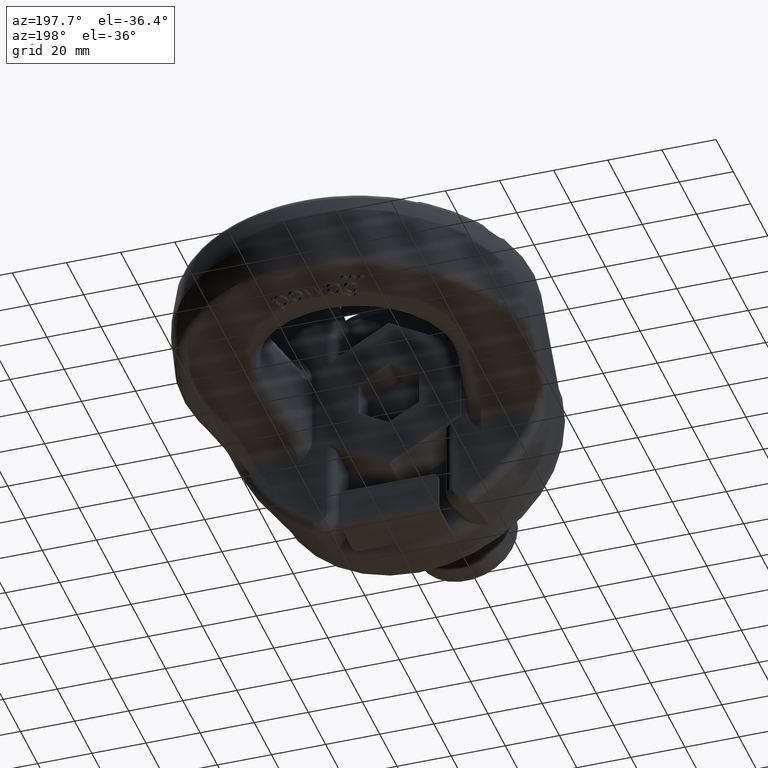
[diagram: clean part render]
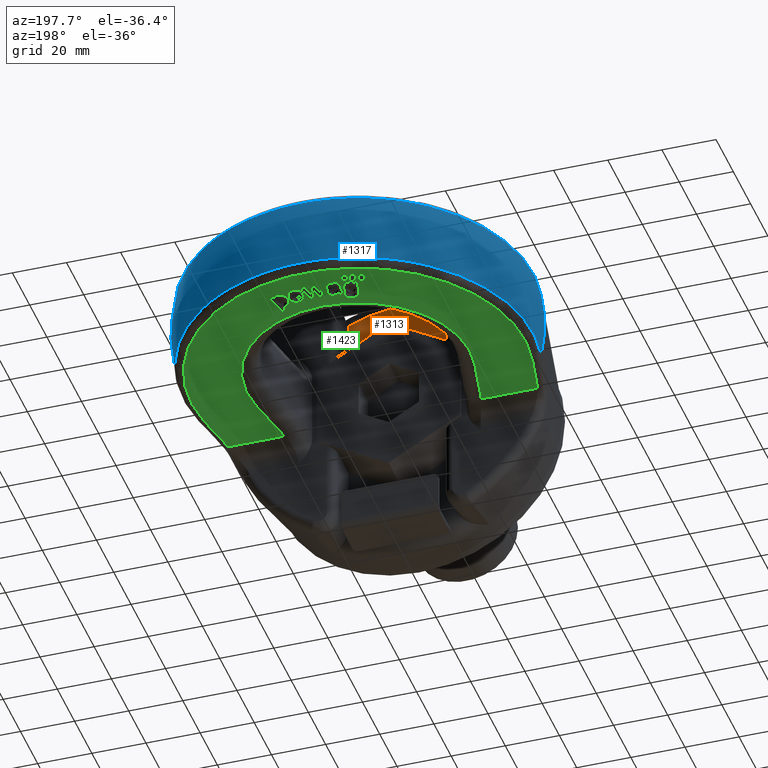
[diagram: same view with three faces highlighted in distinct colors, each labeled with its STEP entity id]
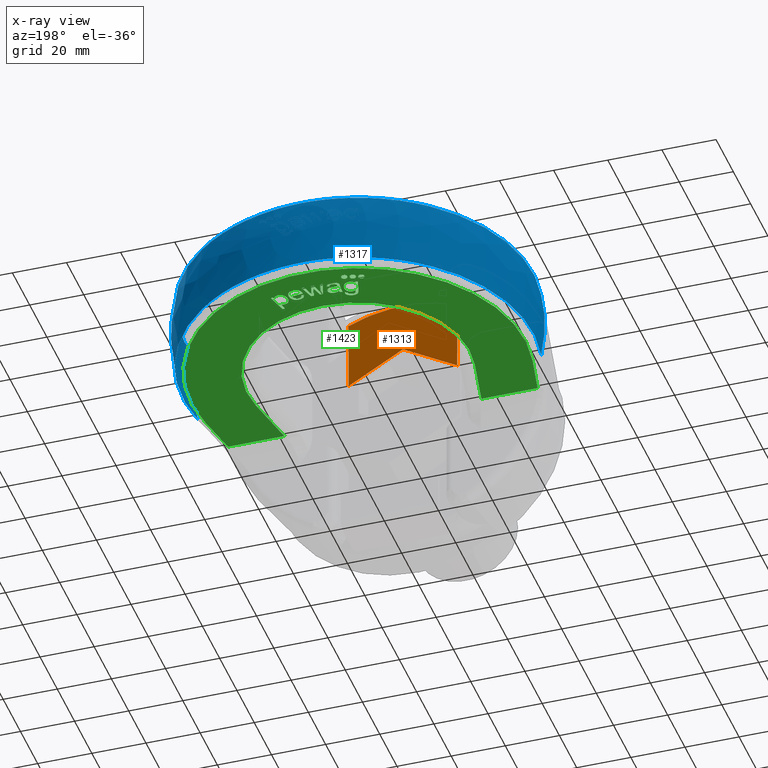
[diagram: x-ray of the same camera — body ghosted, the three highlighted faces saturated]
A machine part, auxiliary view with three faces highlighted in distinct colors.
The next image is the same camera in x-ray (body ghosted, the three faces saturated) — at least one of them is partly hidden behind the body in this view.
Their STEP definitions:

[orange] entity #1313 — the highlighted planar face has unit normal (-0, 1, 0).
#1093=FACE_OUTER_BOUND('',#1825,.T.);
#1313=ADVANCED_FACE('',(#1093),#1552,.T.);
#1552=PLANE('',#5129);
#1673=CIRCLE('',#5128,49.523321448062);
#1825=EDGE_LOOP('',(#2785,#2786,#2787,#2788,#2789,#2790,#2791));
#2135=LINE('',#6648,#2415);
#2136=LINE('',#6662,#2416);
#2137=LINE('',#6664,#2417);
#2138=LINE('',#6666,#2418);
#2415=VECTOR('',#5453,1.);
#2416=VECTOR('',#5458,1.);
#2417=VECTOR('',#5459,1.);
#2418=VECTOR('',#5460,1.);
#2785=ORIENTED_EDGE('',*,*,#4348,.T.);
#2786=ORIENTED_EDGE('',*,*,#4349,.T.);
#2787=ORIENTED_EDGE('',*,*,#4350,.T.);
#2788=ORIENTED_EDGE('',*,*,#4351,.T.);
#2789=ORIENTED_EDGE('',*,*,#4352,.F.);
#2790=ORIENTED_EDGE('',*,*,#4353,.T.);
#2791=ORIENTED_EDGE('',*,*,#4354,.T.);
#3957=VERTEX_POINT('',#6636);
#3960=VERTEX_POINT('',#6647);
#3961=VERTEX_POINT('',#6654);
#3962=VERTEX_POINT('',#6656);
#3963=VERTEX_POINT('',#6661);
#3964=VERTEX_POINT('',#6663);
#3965=VERTEX_POINT('',#6665);
#4348=EDGE_CURVE('',#3957,#3960,#2135,.T.);
#4349=EDGE_CURVE('',#3960,#3961,#4880,.T.);
#4350=EDGE_CURVE('',#3961,#3962,#1673,.T.);
#4351=EDGE_CURVE('',#3962,#3963,#4881,.T.);
#4352=EDGE_CURVE('',#3964,#3963,#2136,.T.);
#4353=EDGE_CURVE('',#3964,#3965,#2137,.T.);
#4354=EDGE_CURVE('',#3965,#3957,#2138,.T.);
#4880=B_SPLINE_CURVE_WITH_KNOTS('',3,(#6650,#6651,#6652,#6653),
 .UNSPECIFIED.,.F.,.F.,(4,4),(0.,1.),.UNSPECIFIED.);
#4881=B_SPLINE_CURVE_WITH_KNOTS('',3,(#6657,#6658,#6659,#6660),
 .UNSPECIFIED.,.F.,.F.,(4,4),(0.,1.),.UNSPECIFIED.);
#5128=AXIS2_PLACEMENT_3D('',#6655,#5456,#5457);
#5129=AXIS2_PLACEMENT_3D('',#6667,#5461,#5462);
#5453=DIRECTION('',(0.,0.,1.));
#5456=DIRECTION('',(-1.73039748227113E-16,1.,0.));
#5457=DIRECTION('',(-1.,-1.40113661624745E-16,0.));
#5458=DIRECTION('',(0.,0.,1.));
#5459=DIRECTION('',(-0.86602540378444,-1.49856817829143E-16,0.499999999999998));
#5460=DIRECTION('',(-0.86602540378444,-1.49856817829143E-16,-0.499999999999998));
#5461=DIRECTION('',(-1.73039748227113E-16,1.,0.));
#5462=DIRECTION('',(-1.,-1.73472347597681E-16,0.));
#6636=CARTESIAN_POINT('',(-20.05,18.5,19.0236913697982));
#6647=CARTESIAN_POINT('',(-20.05,18.5,43.4369797351318));
#6648=CARTESIAN_POINT('',(-20.05,18.5,72.6));
#6650=CARTESIAN_POINT('',(-20.05,18.5,43.4369797351318));
#6651=CARTESIAN_POINT('',(-20.05,18.5,44.0225324551366));
#6652=CARTESIAN_POINT('',(-20.1300914744361,18.5,44.6133565695184));
#6653=CARTESIAN_POINT('',(-20.2864178499622,18.5,45.1776561816217));
#6654=CARTESIAN_POINT('',(-20.2864178499622,18.5,45.1776561816217));
#6655=CARTESIAN_POINT('',(-1.52477105293198E-13,18.5,0.));
#6656=CARTESIAN_POINT('',(20.2864178499622,18.5,45.1776561816216));
#6657=CARTESIAN_POINT('',(20.2864178499622,18.5,45.1776561816216));
#6658=CARTESIAN_POINT('',(20.1300914744361,18.5,44.6133565695183));
#6659=CARTESIAN_POINT('',(20.05,18.5,44.0225324551365));
#6660=CARTESIAN_POINT('',(20.05,18.5,43.4369797351317));
#6661=CARTESIAN_POINT('',(20.05,18.5,43.4369797351317));
#6662=CARTESIAN_POINT('',(20.05,18.5,72.6));
#6663=CARTESIAN_POINT('',(20.05,18.5,19.0236913697982));
#6664=CARTESIAN_POINT('',(-33.2242221573751,18.5,49.7815778732264));
#6665=CARTESIAN_POINT('',(-3.46944695195361E-15,18.5,30.5995642670501));
#6666=CARTESIAN_POINT('',(3.14922215737505,18.5,32.4177685273485));
#6667=CARTESIAN_POINT('',(-20.05,18.5,72.6));

[blue] entity #1317 — the highlighted spherical surface has radius 66 mm.
#1089=SPHERICAL_SURFACE('',#5146,66.);
#1096=FACE_OUTER_BOUND('',#1830,.T.);
#1317=ADVANCED_FACE('',(#1096),#1089,.T.);
#1676=CIRCLE('',#5134,64.7396210534805);
#1680=CIRCLE('',#5138,64.7396210534805);
#1685=CIRCLE('',#5144,64.7047952471735);
#1686=CIRCLE('',#5145,64.7047952471735);
#1830=EDGE_LOOP('',(#2831,#2832,#2833,#2834));
#2831=ORIENTED_EDGE('',*,*,#4372,.F.);
#2832=ORIENTED_EDGE('',*,*,#4393,.T.);
#2833=ORIENTED_EDGE('',*,*,#4382,.F.);
#2834=ORIENTED_EDGE('',*,*,#4394,.T.);
#3982=VERTEX_POINT('',#6762);
#3983=VERTEX_POINT('',#6763);
#3992=VERTEX_POINT('',#6815);
#3993=VERTEX_POINT('',#6817);
#4372=EDGE_CURVE('',#3982,#3983,#1676,.T.);
#4382=EDGE_CURVE('',#3992,#3993,#1680,.T.);
#4393=EDGE_CURVE('',#3982,#3993,#1685,.T.);
#4394=EDGE_CURVE('',#3992,#3983,#1686,.T.);
#5134=AXIS2_PLACEMENT_3D('',#6761,#5481,#5482);
#5138=AXIS2_PLACEMENT_3D('',#6816,#5489,#5490);
#5144=AXIS2_PLACEMENT_3D('',#6872,#5501,#5502);
#5145=AXIS2_PLACEMENT_3D('',#6873,#5503,#5504);
#5146=AXIS2_PLACEMENT_3D('',#6874,#5505,#5506);
#5481=DIRECTION('',(-9.36790447446346E-16,-1.,0.));
#5482=DIRECTION('',(1.,-9.646340852625E-16,0.));
#5489=DIRECTION('',(-9.36790447446346E-16,-1.,0.));
#5490=DIRECTION('',(1.,-9.646340852625E-16,0.));
#5501=DIRECTION('',(0.,-1.54886024640786E-16,-1.));
#5502=DIRECTION('',(0.,1.,-1.60858879409181E-16));
#5503=DIRECTION('',(-2.34291072916505E-15,-1.54886024640786E-16,1.));
#5504=DIRECTION('',(-3.80990360822346E-31,1.,1.60858879409181E-16));
#5505=DIRECTION('',(-8.75558107488978E-16,-1.,0.));
#5506=DIRECTION('',(1.,-8.41078048958452E-16,0.));
#6761=CARTESIAN_POINT('',(-7.38534893235432E-14,57.1632766699694,0.));
#6762=CARTESIAN_POINT('',(-63.4186807031407,57.1632766699695,13.0111287758347));
#6763=CARTESIAN_POINT('',(-63.4186807031405,57.1632766699693,-13.0111287758348));
#6815=CARTESIAN_POINT('',(63.4186807031407,57.1632766699695,-13.0111287758345));
#6816=CARTESIAN_POINT('',(-7.38534893235432E-14,57.1632766699694,0.));
#6817=CARTESIAN_POINT('',(63.4186807031406,57.1632766699693,13.0111287758347));
#6872=CARTESIAN_POINT('',(-1.38050658413677E-30,70.,13.0111287758347));
#6873=CARTESIAN_POINT('',(3.04839132074511E-14,70.,-13.0111287758347));
#6874=CARTESIAN_POINT('',(-1.38050658413677E-30,70.,0.));

[green] entity #1423 — the highlighted planar face has unit normal (-0, -0, 1).
#1423=ADVANCED_FACE('',(#1789,#1790,#1791,#1792,#1793,#1794,#1795,#1796,
#1797),#1605,.F.);
#1605=PLANE('',#5249);
#1709=CIRCLE('',#5244,1.1625);
#1710=CIRCLE('',#5245,1.1625);
#1711=CIRCLE('',#5246,1.1625);
#1712=CIRCLE('',#5247,41.2);
#1713=CIRCLE('',#5248,61.6656306219275);
#1789=FACE_BOUND('',#1946,.T.);
#1790=FACE_BOUND('',#1947,.T.);
#1791=FACE_BOUND('',#1948,.T.);
#1792=FACE_BOUND('',#1949,.T.);
#1793=FACE_BOUND('',#1950,.T.);
#1794=FACE_BOUND('',#1951,.T.);
#1795=FACE_BOUND('',#1952,.T.);
#1796=FACE_BOUND('',#1953,.T.);
#1797=FACE_BOUND('',#1954,.T.);
#1946=EDGE_LOOP('',(#3273,#3274,#3275,#3276,#3277,#3278,#3279));
#1947=EDGE_LOOP('',(#3280,#3281,#3282,#3283,#3284,#3285,#3286,#3287,#3288,
#3289,#3290,#3291,#3292,#3293,#3294));
#1948=EDGE_LOOP('',(#3295,#3296,#3297,#3298,#3299));
#1949=EDGE_LOOP('',(#3300));
#1950=EDGE_LOOP('',(#3301));
#1951=EDGE_LOOP('',(#3302));
#1952=EDGE_LOOP('',(#3303,#3304,#3305,#3306,#3307,#3308,#3309,#3310));
#1953=EDGE_LOOP('',(#3311,#3312,#3313,#3314,#3315,#3316));
#1954=EDGE_LOOP('',(#3317,#3318,#3319,#3320,#3321,#3322,#3323,#3324,#3325));
#2226=LINE('',#8104,#2534);
#2227=LINE('',#8136,#2535);
#2228=LINE('',#8138,#2536);
#2229=LINE('',#8139,#2537);
#2230=LINE('',#8142,#2538);
#2231=LINE('',#8144,#2539);
#2232=LINE('',#8146,#2540);
#2233=LINE('',#8160,#2541);
#2234=LINE('',#8162,#2542);
#2235=LINE('',#8178,#2543);
#2236=LINE('',#8180,#2544);
#2237=LINE('',#8182,#2545);
#2238=LINE('',#8184,#2546);
#2239=LINE('',#8186,#2547);
#2240=LINE('',#8202,#2548);
#2241=LINE('',#8225,#2549);
#2242=LINE('',#8235,#2550);
#2243=LINE('',#8237,#2551);
#2244=LINE('',#8251,#2552);
#2245=LINE('',#8253,#2553);
#2246=LINE('',#8254,#2554);
#2247=LINE('',#8257,#2555);
#2248=LINE('',#8259,#2556);
#2249=LINE('',#8261,#2557);
#2250=LINE('',#8263,#2558);
#2251=LINE('',#8287,#2559);
#2252=LINE('',#8332,#2560);
#2534=VECTOR('',#5806,1.);
#2535=VECTOR('',#5807,1.);
#2536=VECTOR('',#5808,1.);
#2537=VECTOR('',#5809,1.);
#2538=VECTOR('',#5810,1.);
#2539=VECTOR('',#5811,1.);
#2540=VECTOR('',#5812,1.);
#2541=VECTOR('',#5813,1.);
#2542=VECTOR('',#5814,1.);
#2543=VECTOR('',#5815,1.);
#2544=VECTOR('',#5816,1.);
#2545=VECTOR('',#5817,1.);
#2546=VECTOR('',#5818,1.);
#2547=VECTOR('',#5819,1.);
#2548=VECTOR('',#5820,1.);
#2549=VECTOR('',#5821,1.);
#2550=VECTOR('',#5830,1.);
#2551=VECTOR('',#5831,1.);
#2552=VECTOR('',#5834,1.);
#2553=VECTOR('',#5835,1.);
#2554=VECTOR('',#5836,1.);
#2555=VECTOR('',#5837,1.);
#2556=VECTOR('',#5838,1.);
#2557=VECTOR('',#5839,1.);
#2558=VECTOR('',#5840,1.);
#2559=VECTOR('',#5841,1.);
#2560=VECTOR('',#5842,1.);
#3273=ORIENTED_EDGE('',*,*,#4570,.T.);
#3274=ORIENTED_EDGE('',*,*,#4571,.T.);
#3275=ORIENTED_EDGE('',*,*,#4572,.T.);
#3276=ORIENTED_EDGE('',*,*,#4573,.T.);
#3277=ORIENTED_EDGE('',*,*,#4574,.T.);
#3278=ORIENTED_EDGE('',*,*,#4575,.T.);
#3279=ORIENTED_EDGE('',*,*,#4576,.T.);
#3280=ORIENTED_EDGE('',*,*,#4577,.T.);
#3281=ORIENTED_EDGE('',*,*,#4578,.T.);
#3282=ORIENTED_EDGE('',*,*,#4579,.T.);
#3283=ORIENTED_EDGE('',*,*,#4580,.T.);
#3284=ORIENTED_EDGE('',*,*,#4581,.T.);
#3285=ORIENTED_EDGE('',*,*,#4582,.T.);
#3286=ORIENTED_EDGE('',*,*,#4583,.T.);
#3287=ORIENTED_EDGE('',*,*,#4584,.T.);
#3288=ORIENTED_EDGE('',*,*,#4585,.T.);
#3289=ORIENTED_EDGE('',*,*,#4586,.T.);
#3290=ORIENTED_EDGE('',*,*,#4587,.T.);
#3291=ORIENTED_EDGE('',*,*,#4588,.T.);
#3292=ORIENTED_EDGE('',*,*,#4589,.T.);
#3293=ORIENTED_EDGE('',*,*,#4590,.T.);
#3294=ORIENTED_EDGE('',*,*,#4591,.T.);
#3295=ORIENTED_EDGE('',*,*,#4592,.T.);
#3296=ORIENTED_EDGE('',*,*,#4593,.T.);
#3297=ORIENTED_EDGE('',*,*,#4594,.T.);
#3298=ORIENTED_EDGE('',*,*,#4595,.T.);
#3299=ORIENTED_EDGE('',*,*,#4596,.T.);
#3300=ORIENTED_EDGE('',*,*,#4597,.F.);
#3301=ORIENTED_EDGE('',*,*,#4598,.F.);
#3302=ORIENTED_EDGE('',*,*,#4599,.F.);
#3303=ORIENTED_EDGE('',*,*,#4600,.T.);
#3304=ORIENTED_EDGE('',*,*,#4601,.T.);
#3305=ORIENTED_EDGE('',*,*,#4602,.T.);
#3306=ORIENTED_EDGE('',*,*,#4603,.T.);
#3307=ORIENTED_EDGE('',*,*,#4604,.T.);
#3308=ORIENTED_EDGE('',*,*,#4605,.T.);
#3309=ORIENTED_EDGE('',*,*,#4606,.T.);
#3310=ORIENTED_EDGE('',*,*,#4607,.T.);
#3311=ORIENTED_EDGE('',*,*,#4608,.T.);
#3312=ORIENTED_EDGE('',*,*,#4609,.T.);
#3313=ORIENTED_EDGE('',*,*,#4610,.T.);
#3314=ORIENTED_EDGE('',*,*,#4611,.T.);
#3315=ORIENTED_EDGE('',*,*,#4612,.T.);
#3316=ORIENTED_EDGE('',*,*,#4613,.T.);
#3317=ORIENTED_EDGE('',*,*,#4614,.T.);
#3318=ORIENTED_EDGE('',*,*,#4615,.T.);
#3319=ORIENTED_EDGE('',*,*,#4616,.T.);
#3320=ORIENTED_EDGE('',*,*,#4617,.T.);
#3321=ORIENTED_EDGE('',*,*,#4618,.T.);
#3322=ORIENTED_EDGE('',*,*,#4619,.T.);
#3323=ORIENTED_EDGE('',*,*,#4620,.T.);
#3324=ORIENTED_EDGE('',*,*,#4621,.T.);
#3325=ORIENTED_EDGE('',*,*,#4622,.T.);
#4087=VERTEX_POINT('',#8097);
#4088=VERTEX_POINT('',#8098);
#4089=VERTEX_POINT('',#8103);
#4090=VERTEX_POINT('',#8105);
#4091=VERTEX_POINT('',#8118);
#4092=VERTEX_POINT('',#8135);
#4093=VERTEX_POINT('',#8137);
#4094=VERTEX_POINT('',#8140);
#4095=VERTEX_POINT('',#8141);
#4096=VERTEX_POINT('',#8143);
#4097=VERTEX_POINT('',#8145);
#4098=VERTEX_POINT('',#8147);
#4099=VERTEX_POINT('',#8154);
#4100=VERTEX_POINT('',#8159);
#4101=VERTEX_POINT('',#8161);
#4102=VERTEX_POINT('',#8163);
#4103=VERTEX_POINT('',#8170);
#4104=VERTEX_POINT('',#8177);
#4105=VERTEX_POINT('',#8179);
#4106=VERTEX_POINT('',#8181);
#4107=VERTEX_POINT('',#8183);
#4108=VERTEX_POINT('',#8185);
#4109=VERTEX_POINT('',#8195);
#4110=VERTEX_POINT('',#8196);
#4111=VERTEX_POINT('',#8201);
#4112=VERTEX_POINT('',#8203);
#4113=VERTEX_POINT('',#8224);
#4114=VERTEX_POINT('',#8227);
#4115=VERTEX_POINT('',#8229);
#4116=VERTEX_POINT('',#8231);
#4117=VERTEX_POINT('',#8233);
#4118=VERTEX_POINT('',#8234);
#4119=VERTEX_POINT('',#8236);
#4120=VERTEX_POINT('',#8238);
#4121=VERTEX_POINT('',#8243);
#4122=VERTEX_POINT('',#8245);
#4123=VERTEX_POINT('',#8250);
#4124=VERTEX_POINT('',#8252);
#4125=VERTEX_POINT('',#8255);
#4126=VERTEX_POINT('',#8256);
#4127=VERTEX_POINT('',#8258);
#4128=VERTEX_POINT('',#8260);
#4129=VERTEX_POINT('',#8262);
#4130=VERTEX_POINT('',#8264);
#4131=VERTEX_POINT('',#8288);
#4132=VERTEX_POINT('',#8289);
#4133=VERTEX_POINT('',#8294);
#4134=VERTEX_POINT('',#8311);
#4135=VERTEX_POINT('',#8318);
#4136=VERTEX_POINT('',#8331);
#4137=VERTEX_POINT('',#8333);
#4138=VERTEX_POINT('',#8338);
#4139=VERTEX_POINT('',#8351);
#4570=EDGE_CURVE('',#4087,#4088,#4995,.T.);
#4571=EDGE_CURVE('',#4088,#4089,#4996,.T.);
#4572=EDGE_CURVE('',#4089,#4090,#2226,.T.);
#4573=EDGE_CURVE('',#4090,#4091,#4997,.T.);
#4574=EDGE_CURVE('',#4091,#4092,#4998,.T.);
#4575=EDGE_CURVE('',#4092,#4093,#2227,.T.);
#4576=EDGE_CURVE('',#4093,#4087,#2228,.T.);
#4577=EDGE_CURVE('',#4094,#4095,#2229,.T.);
#4578=EDGE_CURVE('',#4095,#4096,#2230,.T.);
#4579=EDGE_CURVE('',#4096,#4097,#2231,.T.);
#4580=EDGE_CURVE('',#4097,#4098,#2232,.T.);
#4581=EDGE_CURVE('',#4098,#4099,#4999,.T.);
#4582=EDGE_CURVE('',#4099,#4100,#5000,.T.);
#4583=EDGE_CURVE('',#4100,#4101,#2233,.T.);
#4584=EDGE_CURVE('',#4101,#4102,#2234,.T.);
#4585=EDGE_CURVE('',#4102,#4103,#5001,.T.);
#4586=EDGE_CURVE('',#4103,#4104,#5002,.T.);
#4587=EDGE_CURVE('',#4104,#4105,#2235,.T.);
#4588=EDGE_CURVE('',#4105,#4106,#2236,.T.);
#4589=EDGE_CURVE('',#4106,#4107,#2237,.T.);
#4590=EDGE_CURVE('',#4107,#4108,#2238,.T.);
#4591=EDGE_CURVE('',#4108,#4094,#2239,.T.);
#4592=EDGE_CURVE('',#4109,#4110,#5003,.T.);
#4593=EDGE_CURVE('',#4110,#4111,#5004,.T.);
#4594=EDGE_CURVE('',#4111,#4112,#2240,.T.);
#4595=EDGE_CURVE('',#4112,#4113,#5005,.T.);
#4596=EDGE_CURVE('',#4113,#4109,#2241,.T.);
#4597=EDGE_CURVE('',#4114,#4114,#1709,.T.);
#4598=EDGE_CURVE('',#4115,#4115,#1710,.T.);
#4599=EDGE_CURVE('',#4116,#4116,#1711,.T.);
#4600=EDGE_CURVE('',#4117,#4118,#1712,.T.);
#4601=EDGE_CURVE('',#4118,#4119,#2242,.T.);
#4602=EDGE_CURVE('',#4119,#4120,#2243,.T.);
#4603=EDGE_CURVE('',#4120,#4121,#5006,.T.);
#4604=EDGE_CURVE('',#4121,#4122,#1713,.T.);
#4605=EDGE_CURVE('',#4122,#4123,#5007,.T.);
#4606=EDGE_CURVE('',#4123,#4124,#2244,.T.);
#4607=EDGE_CURVE('',#4124,#4117,#2245,.T.);
#4608=EDGE_CURVE('',#4125,#4126,#2246,.T.);
#4609=EDGE_CURVE('',#4126,#4127,#2247,.T.);
#4610=EDGE_CURVE('',#4127,#4128,#2248,.T.);
#4611=EDGE_CURVE('',#4128,#4129,#2249,.T.);
#4612=EDGE_CURVE('',#4129,#4130,#2250,.T.);
#4613=EDGE_CURVE('',#4130,#4125,#5008,.T.);
#4614=EDGE_CURVE('',#4131,#4132,#2251,.T.);
#4615=EDGE_CURVE('',#4132,#4133,#5009,.T.);
#4616=EDGE_CURVE('',#4133,#4134,#5010,.T.);
#4617=EDGE_CURVE('',#4134,#4135,#5011,.T.);
#4618=EDGE_CURVE('',#4135,#4136,#5012,.T.);
#4619=EDGE_CURVE('',#4136,#4137,#2252,.T.);
#4620=EDGE_CURVE('',#4137,#4138,#5013,.T.);
#4621=EDGE_CURVE('',#4138,#4139,#5014,.T.);
#4622=EDGE_CURVE('',#4139,#4131,#5015,.T.);
#4995=B_SPLINE_CURVE_WITH_KNOTS('',3,(#8085,#8086,#8087,#8088,#8089,#8090,
#8091,#8092,#8093,#8094,#8095,#8096),.UNSPECIFIED.,.F.,.F.,(4,2,2,2,2,4),
(0.,0.305645754892094,0.470829306249217,0.636012857606337,0.802206343843957,
1.),.UNSPECIFIED.);
#4996=B_SPLINE_CURVE_WITH_KNOTS('',3,(#8099,#8100,#8101,#8102),
 .UNSPECIFIED.,.F.,.F.,(4,4),(0.,1.),.UNSPECIFIED.);
#4997=B_SPLINE_CURVE_WITH_KNOTS('',3,(#8106,#8107,#8108,#8109,#8110,#8111,
#8112,#8113,#8114,#8115,#8116,#8117),.UNSPECIFIED.,.F.,.F.,(4,2,2,2,2,4),
(0.,0.163304651309286,0.382303784248528,0.619375661168191,0.856447538087856,
1.),.UNSPECIFIED.);
#4998=B_SPLINE_CURVE_WITH_KNOTS('',3,(#8119,#8120,#8121,#8122,#8123,#8124,
#8125,#8126,#8127,#8128,#8129,#8130,#8131,#8132,#8133,#8134),
 .UNSPECIFIED.,.F.,.F.,(4,2,2,2,2,2,2,4),(0.,0.139503666745456,0.312880428291726,
0.486257189837992,0.605370995480462,0.723854105689079,0.842337215897696,
1.),.UNSPECIFIED.);
#4999=B_SPLINE_CURVE_WITH_KNOTS('',3,(#8148,#8149,#8150,#8151,#8152,#8153),
 .UNSPECIFIED.,.F.,.F.,(4,2,4),(0.,0.728909607654962,1.),.UNSPECIFIED.);
#5000=B_SPLINE_CURVE_WITH_KNOTS('',3,(#8155,#8156,#8157,#8158),
 .UNSPECIFIED.,.F.,.F.,(4,4),(0.,1.),.UNSPECIFIED.);
#5001=B_SPLINE_CURVE_WITH_KNOTS('',3,(#8164,#8165,#8166,#8167,#8168,#8169),
 .UNSPECIFIED.,.F.,.F.,(4,2,4),(0.,0.752082276025124,1.),.UNSPECIFIED.);
#5002=B_SPLINE_CURVE_WITH_KNOTS('',3,(#8171,#8172,#8173,#8174,#8175,#8176),
 .UNSPECIFIED.,.F.,.F.,(4,2,4),(0.,0.250451922487271,1.),.UNSPECIFIED.);
#5003=B_SPLINE_CURVE_WITH_KNOTS('',3,(#8187,#8188,#8189,#8190,#8191,#8192,
#8193,#8194),.UNSPECIFIED.,.F.,.F.,(4,2,2,4),(0.,0.363477968613218,0.728087675912443,
1.),.UNSPECIFIED.);
#5004=B_SPLINE_CURVE_WITH_KNOTS('',3,(#8197,#8198,#8199,#8200),
 .UNSPECIFIED.,.F.,.F.,(4,4),(0.,1.),.UNSPECIFIED.);
#5005=B_SPLINE_CURVE_WITH_KNOTS('',3,(#8204,#8205,#8206,#8207,#8208,#8209,
#8210,#8211,#8212,#8213,#8214,#8215,#8216,#8217,#8218,#8219,#8220,#8221,
#8222,#8223),.UNSPECIFIED.,.F.,.F.,(4,2,2,2,2,2,2,2,2,4),(0.,0.10292120312204,
0.206156274885326,0.336063021724232,0.465707475917734,0.599570296299743,
0.733433116681749,0.86284525505617,0.99225739343059,1.),.UNSPECIFIED.);
#5006=B_SPLINE_CURVE_WITH_KNOTS('',3,(#8239,#8240,#8241,#8242),
 .UNSPECIFIED.,.F.,.F.,(4,4),(0.,1.),.UNSPECIFIED.);
#5007=B_SPLINE_CURVE_WITH_KNOTS('',3,(#8246,#8247,#8248,#8249),
 .UNSPECIFIED.,.F.,.F.,(4,4),(0.,1.),.UNSPECIFIED.);
#5008=B_SPLINE_CURVE_WITH_KNOTS('',3,(#8265,#8266,#8267,#8268,#8269,#8270,
#8271,#8272,#8273,#8274,#8275,#8276,#8277,#8278,#8279,#8280,#8281,#8282,
#8283,#8284,#8285,#8286),.UNSPECIFIED.,.F.,.F.,(4,2,2,2,2,2,2,2,2,2,4),
(0.,0.0830854503763856,0.165678296755071,0.273272220956495,0.380460889370519,
0.487248686046681,0.601946689884038,0.717055250849194,0.831909514623423,
0.915821305508704,1.),.UNSPECIFIED.);
#5009=B_SPLINE_CURVE_WITH_KNOTS('',3,(#8290,#8291,#8292,#8293),
 .UNSPECIFIED.,.F.,.F.,(4,4),(0.,1.),.UNSPECIFIED.);
#5010=B_SPLINE_CURVE_WITH_KNOTS('',3,(#8295,#8296,#8297,#8298,#8299,#8300,
#8301,#8302,#8303,#8304,#8305,#8306,#8307,#8308,#8309,#8310),
 .UNSPECIFIED.,.F.,.F.,(4,2,2,2,2,2,2,4),(0.,0.121639465164558,0.24393090499118,
0.445161792748214,0.646392680505253,0.763565096161256,0.881519242448365,
1.),.UNSPECIFIED.);
#5011=B_SPLINE_CURVE_WITH_KNOTS('',3,(#8312,#8313,#8314,#8315,#8316,#8317),
 .UNSPECIFIED.,.F.,.F.,(4,2,4),(0.,0.329344693449401,1.),.UNSPECIFIED.);
#5012=B_SPLINE_CURVE_WITH_KNOTS('',3,(#8319,#8320,#8321,#8322,#8323,#8324,
#8325,#8326,#8327,#8328,#8329,#8330),.UNSPECIFIED.,.F.,.F.,(4,2,2,2,2,4),
(0.,0.0173977322142946,0.217983350684949,0.490675035316422,0.745337517658209,
1.),.UNSPECIFIED.);
#5013=B_SPLINE_CURVE_WITH_KNOTS('',3,(#8334,#8335,#8336,#8337),
 .UNSPECIFIED.,.F.,.F.,(4,4),(0.,1.),.UNSPECIFIED.);
#5014=B_SPLINE_CURVE_WITH_KNOTS('',3,(#8339,#8340,#8341,#8342,#8343,#8344,
#8345,#8346,#8347,#8348,#8349,#8350),.UNSPECIFIED.,.F.,.F.,(4,2,2,2,2,4),
(0.,0.201730292707486,0.402155128097308,0.601755169925855,0.800199545078038,
1.),.UNSPECIFIED.);
#5015=B_SPLINE_CURVE_WITH_KNOTS('',3,(#8352,#8353,#8354,#8355,#8356,#8357,
#8358,#8359,#8360,#8361),.UNSPECIFIED.,.F.,.F.,(4,2,2,2,4),(0.,0.16140360480511,
0.323059797411172,0.661780038481063,1.),.UNSPECIFIED.);
#5244=AXIS2_PLACEMENT_3D('',#8226,#5822,#5823);
#5245=AXIS2_PLACEMENT_3D('',#8228,#5824,#5825);
#5246=AXIS2_PLACEMENT_3D('',#8230,#5826,#5827);
#5247=AXIS2_PLACEMENT_3D('',#8232,#5828,#5829);
#5248=AXIS2_PLACEMENT_3D('',#8244,#5832,#5833);
#5249=AXIS2_PLACEMENT_3D('',#8362,#5843,#5844);
#5806=DIRECTION('',(-0.91908114156968,-0.39406833824982,-2.21436074590518E-15));
#5807=DIRECTION('',(-0.257903959022476,0.96617055840081,-4.54599635772231E-16));
#5808=DIRECTION('',(-0.96617055840081,-0.257903959022476,-2.30359708643276E-15));
#5809=DIRECTION('',(0.258682551291159,-0.965962389359698,4.56456050427406E-16));
#5810=DIRECTION('',(0.999999995013309,9.98668225749809E-5,2.34292618545682E-15));
#5811=DIRECTION('',(0.297312437412129,0.954780244119064,8.44458615944251E-16));
#5812=DIRECTION('',(-0.999999995013309,-9.98668226028311E-5,-2.34292618545682E-15));
#5813=DIRECTION('',(-0.266694412603285,0.96378114231717,-4.75564970939345E-16));
#5814=DIRECTION('',(-0.999999995013309,-9.98668226114398E-5,-2.34292618545682E-15));
#5815=DIRECTION('',(-0.999999995013309,-9.98668226022964E-5,-2.34292618545682E-15));
#5816=DIRECTION('',(0.303115801877046,-0.952953729544323,5.62574049561468E-16));
#5817=DIRECTION('',(0.999999995013309,9.98668225943257E-5,2.34292618545682E-15));
#5818=DIRECTION('',(0.260546764680396,0.965461228333162,7.59974262020274E-16));
#5819=DIRECTION('',(0.226095127342087,0.974105227063363,6.80595985863367E-16));
#5820=DIRECTION('',(-0.999818561746989,0.0190484536428019,-2.3395352962751E-15));
#5821=DIRECTION('',(0.990308685769362,-0.138883789153951,2.29869368708527E-15));
#5822=DIRECTION('',(2.34291072916505E-15,1.54886024640786E-16,-1.));
#5823=DIRECTION('',(0.,1.00000000000001,0.));
#5824=DIRECTION('',(2.34291072916505E-15,1.54886024640786E-16,-1.));
#5825=DIRECTION('',(0.,0.999999999999996,0.));
#5826=DIRECTION('',(2.34291072916505E-15,1.54886024640786E-16,-1.));
#5827=DIRECTION('',(0.,0.999999999999996,0.));
#5828=DIRECTION('',(-2.34291072916505E-15,-1.54886024640786E-16,1.));
#5829=DIRECTION('',(-2.99173583594134E-31,1.,1.68419754949205E-16));
#5830=DIRECTION('',(0.194495808030769,-0.980903349295158,3.03758095083753E-16));
#5831=DIRECTION('',(-1.,0.,-2.34291072916505E-15));
#5832=DIRECTION('',(2.34291072916505E-15,1.54886024640786E-16,-1.));
#5833=DIRECTION('',(-3.99767310242843E-31,1.,1.68786741510429E-16));
#5834=DIRECTION('',(-1.,0.,-2.34291072916505E-15));
#5835=DIRECTION('',(0.194495808030769,0.980903349295158,6.07614535742073E-16));
#5836=DIRECTION('',(-0.257710977111592,-0.966222051226419,-7.53448105733082E-16));
#5837=DIRECTION('',(0.966222051226425,-0.25771097711157,2.22385618182315E-15));
#5838=DIRECTION('',(0.257710977111592,0.966222051226419,7.53448105733084E-16));
#5839=DIRECTION('',(-0.966222051226417,0.257710977111598,-2.22385618182313E-15));
#5840=DIRECTION('',(-0.257710977111588,-0.96622205122642,-7.53448105733075E-16));
#5841=DIRECTION('',(0.990280926250583,0.139081584346341,2.34168160070014E-15));
#5842=DIRECTION('',(0.963006440108684,0.269478378184967,2.29797655550939E-15));
#5843=DIRECTION('',(-2.34291072916505E-15,-1.54886024640786E-16,1.));
#5844=DIRECTION('',(0.,1.,1.54390389361936E-16));
#8085=CARTESIAN_POINT('',(-16.0542073672483,121.120330488891,-15.5));
#8086=CARTESIAN_POINT('',(-15.6369690359979,119.557254865631,-15.5));
#8087=CARTESIAN_POINT('',(-15.2197307047474,117.99417924237,-15.5));
#8088=CARTESIAN_POINT('',(-14.5769995988873,115.586353190361,-15.5));
#8089=CARTESIAN_POINT('',(-14.3297593547867,115.012118877035,-15.5));
#8090=CARTESIAN_POINT('',(-13.7907612846348,114.400851413522,-15.5));
#8091=CARTESIAN_POINT('',(-13.4393410675047,114.195062121975,-15.5));
#8092=CARTESIAN_POINT('',(-12.572060351269,113.990210229399,-15.5));
#8093=CARTESIAN_POINT('',(-12.07736744436,114.012781324269,-15.5));
#8094=CARTESIAN_POINT('',(-10.8650487935444,114.336390625881,-15.5));
#8095=CARTESIAN_POINT('',(-10.3718143844394,114.624005506256,-15.5));
#8096=CARTESIAN_POINT('',(-10.0441296562226,115.023383267096,-15.5));
#8097=CARTESIAN_POINT('',(-16.0542073672483,121.120330488891,-15.5));
#8098=CARTESIAN_POINT('',(-10.0441296562226,115.023383267096,-15.5));
#8099=CARTESIAN_POINT('',(-10.0441296562226,115.023383267096,-15.5));
#8100=CARTESIAN_POINT('',(-9.7164449280058,115.422761027935,-15.5));
#8101=CARTESIAN_POINT('',(-9.6386310124269,115.91344549896,-15.5));
#8102=CARTESIAN_POINT('',(-9.80822752264652,116.494041418507,-15.5));
#8103=CARTESIAN_POINT('',(-9.80822752264652,116.494041418507,-15.5));
#8104=CARTESIAN_POINT('',(-102.338366304172,76.8205062120443,-15.5000000000003));
#8105=CARTESIAN_POINT('',(-10.6831598610139,116.118902470413,-15.5));
#8106=CARTESIAN_POINT('',(-10.6831598610139,116.118902470413,-15.5));
#8107=CARTESIAN_POINT('',(-10.646561809009,115.833180424128,-15.5));
#8108=CARTESIAN_POINT('',(-10.69812258232,115.603954671453,-15.5));
#8109=CARTESIAN_POINT('',(-11.0252126612647,115.199586973892,-15.5));
#8110=CARTESIAN_POINT('',(-11.3194728536376,115.029742452747,-15.5));
#8111=CARTESIAN_POINT('',(-12.1556218909366,114.806545683629,-15.5));
#8112=CARTESIAN_POINT('',(-12.5114102119556,114.801862628784,-15.5));
#8113=CARTESIAN_POINT('',(-13.0740992520867,115.016921784688,-15.5));
#8114=CARTESIAN_POINT('',(-13.2978377967444,115.213701196687,-15.5));
#8115=CARTESIAN_POINT('',(-13.5606172416309,115.67068759053,-15.5));
#8116=CARTESIAN_POINT('',(-13.688555807056,116.059491867241,-15.5));
#8117=CARTESIAN_POINT('',(-13.8447013009556,116.660094507307,-15.5));
#8118=CARTESIAN_POINT('',(-13.8447013009556,116.660094507307,-15.5));
#8119=CARTESIAN_POINT('',(-13.8447013009556,116.660094507307,-15.5));
#8120=CARTESIAN_POINT('',(-13.3085898482785,116.29429927171,-15.5));
#8121=CARTESIAN_POINT('',(-12.7369912480429,116.194479649261,-15.5));
#8122=CARTESIAN_POINT('',(-11.3687473688265,116.559710726,-15.5));
#8123=CARTESIAN_POINT('',(-10.8517146394264,116.98500766639,-15.5));
#8124=CARTESIAN_POINT('',(-10.3087754724116,118.283173643784,-15.5));
#8125=CARTESIAN_POINT('',(-10.2725408196601,118.984377676153,-15.5));
#8126=CARTESIAN_POINT('',(-10.6115469638012,120.254376620052,-15.5));
#8127=CARTESIAN_POINT('',(-10.8343702158061,120.705851211944,-15.5));
#8128=CARTESIAN_POINT('',(-11.4489409017774,121.479139691006,-15.5));
#8129=CARTESIAN_POINT('',(-11.8153830615383,121.744967946412,-15.5));
#8130=CARTESIAN_POINT('',(-12.6672431017269,122.026479087376,-15.5));
#8131=CARTESIAN_POINT('',(-13.1243526026345,122.033738382834,-15.5));
#8132=CARTESIAN_POINT('',(-14.2645558353149,121.729379152218,-15.5));
#8133=CARTESIAN_POINT('',(-14.7315204075517,121.327707230194,-15.5));
#8134=CARTESIAN_POINT('',(-15.0158994673229,120.695698491261,-15.5));
#8135=CARTESIAN_POINT('',(-15.0158994673229,120.695698491261,-15.5));
#8136=CARTESIAN_POINT('',(-29.1023387290155,173.466904249148,-15.5000000000001));
#8137=CARTESIAN_POINT('',(-15.1907714149793,121.350811068657,-15.5));
#8138=CARTESIAN_POINT('',(-118.088432685964,93.8839068195092,-15.5000000000003));
#8139=CARTESIAN_POINT('',(-14.7480282381194,177.399813836839,-15.5));
#8140=CARTESIAN_POINT('',(0.0250431257661594,122.23478147724,-15.5));
#8141=CARTESIAN_POINT('',(1.181392882845,117.916784887566,-15.5));
#8142=CARTESIAN_POINT('',(-131.997194090284,117.903484765184,-15.5000000000003));
#8143=CARTESIAN_POINT('',(2.19206509749661,117.91688582019,-15.5));
#8144=CARTESIAN_POINT('',(-1.69790166186742,105.424763242175,-15.5));
#8145=CARTESIAN_POINT('',(3.9405119767258,123.531795686424,-15.5));
#8146=CARTESIAN_POINT('',(-131.99775481605,123.518219963582,-15.5000000000003));
#8147=CARTESIAN_POINT('',(2.93992631112259,123.531695761113,-15.5));
#8148=CARTESIAN_POINT('',(2.93992631112259,123.531695761113,-15.5));
#8149=CARTESIAN_POINT('',(2.63676531109745,122.451146165596,-15.5));
#8150=CARTESIAN_POINT('',(2.33360431107232,121.370596570079,-15.5));
#8151=CARTESIAN_POINT('',(1.91769402968577,119.888177372734,-15.5));
#8152=CARTESIAN_POINT('',(1.80458486689794,119.48640882683,-15.5));
#8153=CARTESIAN_POINT('',(1.69165564482332,119.084589752964,-15.5));
#8154=CARTESIAN_POINT('',(1.69165564482332,119.084589752964,-15.5));
#8155=CARTESIAN_POINT('',(1.69165564482332,119.084589752964,-15.5));
#8156=CARTESIAN_POINT('',(1.67752853626393,119.14406646983,-15.5));
#8157=CARTESIAN_POINT('',(1.57864174629404,119.530664424337,-15.5));
#8158=CARTESIAN_POINT('',(1.39701278271971,120.242401213712,-15.5));
#8159=CARTESIAN_POINT('',(1.39701278271971,120.242401213712,-15.5));
#8160=CARTESIAN_POINT('',(-14.7115766838678,178.455674621581,-15.5));
#8161=CARTESIAN_POINT('',(0.486877582546959,123.531450782929,-15.5));
#8162=CARTESIAN_POINT('',(-131.99775481605,123.518219963581,-15.5000000000003));
#8163=CARTESIAN_POINT('',(-0.507656153627205,123.531351462005,-15.5));
#8164=CARTESIAN_POINT('',(-0.507656153627205,123.531351462005,-15.5));
#8165=CARTESIAN_POINT('',(-0.792660837374821,122.445516735017,-15.5));
#8166=CARTESIAN_POINT('',(-1.07766552112244,121.35968200803,-15.5));
#8167=CARTESIAN_POINT('',(-1.45661964998971,119.915910812243,-15.5));
#8168=CARTESIAN_POINT('',(-1.55357078949004,119.558768947898,-15.5));
#8169=CARTESIAN_POINT('',(-1.64902108180004,119.201229781326,-15.5));
#8170=CARTESIAN_POINT('',(-1.64902108180004,119.201229781326,-15.5));
#8171=CARTESIAN_POINT('',(-1.64902108180004,119.201229781326,-15.5));
#8172=CARTESIAN_POINT('',(-1.75799191286412,119.562713741523,-15.5));
#8173=CARTESIAN_POINT('',(-1.8669627439282,119.92419770172,-15.5));
#8174=CARTESIAN_POINT('',(-2.30205954806481,121.367524455244,-15.5));
#8175=CARTESIAN_POINT('',(-2.62841316017995,122.449298612778,-15.5));
#8176=CARTESIAN_POINT('',(-2.95465295277378,123.531107088208,-15.5));
#8177=CARTESIAN_POINT('',(-2.95465295277378,123.531107088208,-15.5));
#8178=CARTESIAN_POINT('',(-131.99775481605,123.518219963582,-15.5000000000003));
#8179=CARTESIAN_POINT('',(-3.89673663389617,123.531013005304,-15.5));
#8180=CARTESIAN_POINT('',(-22.157047365107,180.938878600526,-15.5));
#8181=CARTESIAN_POINT('',(-2.11085672655916,117.916456101057,-15.5));
#8182=CARTESIAN_POINT('',(-131.997194090284,117.903484765181,-15.5000000000003));
#8183=CARTESIAN_POINT('',(-1.10421913152689,117.916556630756,-15.5));
#8184=CARTESIAN_POINT('',(-2.9257006474552,111.167020577558,-15.5));
#8185=CARTESIAN_POINT('',(-0.196765519040746,121.279144074284,-15.5));
#8186=CARTESIAN_POINT('',(-1.48988361470897,115.707891340939,-15.5));
#8187=CARTESIAN_POINT('',(8.65403497279531,119.760513562251,-15.5));
#8188=CARTESIAN_POINT('',(8.5324409584001,119.154942297598,-15.5));
#8189=CARTESIAN_POINT('',(8.29110444954012,118.712310532189,-15.5));
#8190=CARTESIAN_POINT('',(7.56782217371324,118.152055139492,-15.5));
#8191=CARTESIAN_POINT('',(7.15053589250395,118.045438595844,-15.5));
#8192=CARTESIAN_POINT('',(6.32745900471542,118.160869308089,-15.5));
#8193=CARTESIAN_POINT('',(6.04046126240589,118.293211002308,-15.5));
#8194=CARTESIAN_POINT('',(5.8160736791533,118.508864355205,-15.5));
#8195=CARTESIAN_POINT('',(8.65403497279531,119.760513562251,-15.5));
#8196=CARTESIAN_POINT('',(5.8160736791533,118.508864355205,-15.5));
#8197=CARTESIAN_POINT('',(5.8160736791533,118.508864355205,-15.5));
#8198=CARTESIAN_POINT('',(5.59395920692725,118.726200926677,-15.5));
#8199=CARTESIAN_POINT('',(5.43665770647944,119.042556278473,-15.5));
#8200=CARTESIAN_POINT('',(5.34671764042659,119.461577019374,-15.5));
#8201=CARTESIAN_POINT('',(5.34671764042659,119.461577019374,-15.5));
#8202=CARTESIAN_POINT('',(-132.455588824395,122.086974213421,-15.5000000000003));
#8203=CARTESIAN_POINT('',(4.33903251298227,119.480775346122,-15.5));
#8204=CARTESIAN_POINT('',(4.33903251298227,119.480775346122,-15.5));
#8205=CARTESIAN_POINT('',(4.41700354730931,118.889258627521,-15.5));
#8206=CARTESIAN_POINT('',(4.64472455779796,118.406870944611,-15.5));
#8207=CARTESIAN_POINT('',(5.40081766713356,117.659215360094,-15.5));
#8208=CARTESIAN_POINT('',(5.91903121114446,117.427355921523,-15.5));
#8209=CARTESIAN_POINT('',(7.40336647237474,117.219188399197,-15.5));
#8210=CARTESIAN_POINT('',(8.09360121945793,117.376642660156,-15.5));
#8211=CARTESIAN_POINT('',(9.20436981888771,118.244857647279,-15.5));
#8212=CARTESIAN_POINT('',(9.54524637760112,118.910801178424,-15.5));
#8213=CARTESIAN_POINT('',(9.80325081758287,120.750497801316,-15.5));
#8214=CARTESIAN_POINT('',(9.65940649526807,121.51141328818,-15.5));
#8215=CARTESIAN_POINT('',(8.82533930786711,122.681440635978,-15.5));
#8216=CARTESIAN_POINT('',(8.22440045756328,123.029982893652,-15.5));
#8217=CARTESIAN_POINT('',(6.68812345098712,123.245434878401,-15.5));
#8218=CARTESIAN_POINT('',(6.03329767057846,123.079010747661,-15.5));
#8219=CARTESIAN_POINT('',(4.93229172059253,122.200383784635,-15.5));
#8220=CARTESIAN_POINT('',(4.5928833125883,121.523257125913,-15.5));
#8221=CARTESIAN_POINT('',(4.45630892386797,120.549415583805,-15.5));
#8222=CARTESIAN_POINT('',(4.44646656492739,120.464709633322,-15.5));
#8223=CARTESIAN_POINT('',(4.43476704316091,120.352236048324,-15.5));
#8224=CARTESIAN_POINT('',(4.43476704316091,120.352236048324,-15.5));
#8225=CARTESIAN_POINT('',(-132.895887380269,139.611889050863,-15.5000000000003));
#8226=CARTESIAN_POINT('',(-12.3945647897034,125.328697469522,-15.5));
#8227=CARTESIAN_POINT('',(-12.3945647897034,126.491197469522,-15.5));
#8228=CARTESIAN_POINT('',(-15.3253067690561,124.589604985146,-15.5));
#8229=CARTESIAN_POINT('',(-15.3253067690561,125.752104985147,-15.5));
#8230=CARTESIAN_POINT('',(-18.2125,123.695389408682,-15.5));
#8231=CARTESIAN_POINT('',(-18.2125,124.857889408682,-15.5));
#8232=CARTESIAN_POINT('',(3.63151163020583E-14,70.,-15.5));
#8233=CARTESIAN_POINT('',(40.4132179909606,61.9867727091324,-15.4999999999999));
#8234=CARTESIAN_POINT('',(-40.4132179909605,61.9867727091324,-15.5000000000001));
#8235=CARTESIAN_POINT('',(-36.1615198976549,40.5441259902092,-15.5000000000001));
#8236=CARTESIAN_POINT('',(-36.4006234139046,41.75,-15.5000000000001));
#8237=CARTESIAN_POINT('',(-132.,41.75,-15.5000000000003));
#8238=CARTESIAN_POINT('',(-57.1943342992188,41.75,-15.5000000000001));
#8239=CARTESIAN_POINT('',(-57.1943342992188,41.75,-15.5000000000001));
#8240=CARTESIAN_POINT('',(-58.2774532256605,47.088483312234,-15.5000000000002));
#8241=CARTESIAN_POINT('',(-59.3592493660845,52.4272351242382,-15.5000000000002));
#8242=CARTESIAN_POINT('',(-60.439924488296,57.7662136748647,-15.5000000000002));
#8243=CARTESIAN_POINT('',(-60.439924488296,57.7662136748647,-15.5000000000002));
#8244=CARTESIAN_POINT('',(3.63151163020583E-14,70.,-15.5));
#8245=CARTESIAN_POINT('',(60.4399244882961,57.7662136748649,-15.4999999999999));
#8246=CARTESIAN_POINT('',(60.4399244882961,57.7662136748649,-15.4999999999999));
#8247=CARTESIAN_POINT('',(59.3592493660846,52.4272351242383,-15.4999999999999));
#8248=CARTESIAN_POINT('',(58.2774532256607,47.0884833122341,-15.4999999999999));
#8249=CARTESIAN_POINT('',(57.194334299219,41.75,-15.4999999999999));
#8250=CARTESIAN_POINT('',(57.194334299219,41.75,-15.4999999999999));
#8251=CARTESIAN_POINT('',(-132.,41.75,-15.5000000000003));
#8252=CARTESIAN_POINT('',(36.4006234139047,41.75,-15.4999999999999));
#8253=CARTESIAN_POINT('',(40.4132179909606,61.9867727091324,-15.4999999999999));
#8254=CARTESIAN_POINT('',(11.4801964229162,107.730927617126,-15.5));
#8255=CARTESIAN_POINT('',(13.8208674016461,116.50668074826,-15.5));
#8256=CARTESIAN_POINT('',(13.1167936282863,113.86693442028,-15.5));
#8257=CARTESIAN_POINT('',(-130.363402794631,152.136006803151,-15.5000000000003));
#8258=CARTESIAN_POINT('',(14.0523948596425,113.617390635584,-15.5));
#8259=CARTESIAN_POINT('',(12.4157976542723,107.48138383243,-15.5));
#8260=CARTESIAN_POINT('',(16.0537424432782,121.120936620124,-15.5));
#8261=CARTESIAN_POINT('',(-128.362055210994,159.639552787695,-15.5000000000003));
#8262=CARTESIAN_POINT('',(15.2019554888978,121.348125440774,-15.5));
#8263=CARTESIAN_POINT('',(11.564010699892,107.708572653081,-15.5));
#8264=CARTESIAN_POINT('',(15.0139299819338,120.643171414144,-15.5));
#8265=CARTESIAN_POINT('',(15.0139299819338,120.643171414144,-15.5));
#8266=CARTESIAN_POINT('',(14.8867407494159,120.972570926915,-15.5));
#8267=CARTESIAN_POINT('',(14.7138693480557,121.240285906163,-15.5));
#8268=CARTESIAN_POINT('',(14.2819447684832,121.650088583556,-15.5));
#8269=CARTESIAN_POINT('',(13.9930347762866,121.801891538665,-15.5));
#8270=CARTESIAN_POINT('',(13.1626886834581,122.023361647582,-15.5));
#8271=CARTESIAN_POINT('',(12.7133773185218,122.013931520584,-15.5));
#8272=CARTESIAN_POINT('',(11.8670686918802,121.731742913064,-15.5));
#8273=CARTESIAN_POINT('',(11.5046120953273,121.46632226956,-15.5));
#8274=CARTESIAN_POINT('',(10.907321017347,120.69580505085,-15.5));
#8275=CARTESIAN_POINT('',(10.6859290644883,120.244238199134,-15.5));
#8276=CARTESIAN_POINT('',(10.3998032930213,119.171482071653,-15.5));
#8277=CARTESIAN_POINT('',(10.3678050460262,118.644467180801,-15.5));
#8278=CARTESIAN_POINT('',(10.5374816177006,117.649530247427,-15.5));
#8279=CARTESIAN_POINT('',(10.7419941489891,117.229386703502,-15.5));
#8280=CARTESIAN_POINT('',(11.386439683288,116.549187544476,-15.5));
#8281=CARTESIAN_POINT('',(11.7614122519278,116.323445935037,-15.5));
#8282=CARTESIAN_POINT('',(12.5001473908527,116.126410321704,-15.5));
#8283=CARTESIAN_POINT('',(12.7981996820986,116.116678808321,-15.5));
#8284=CARTESIAN_POINT('',(13.3626507440348,116.241522004913,-15.5));
#8285=CARTESIAN_POINT('',(13.608408820228,116.352000642793,-15.5));
#8286=CARTESIAN_POINT('',(13.8208674016461,116.50668074826,-15.5));
#8287=CARTESIAN_POINT('',(-125.643491365842,100.740742366875,-15.5000000000003));
#8288=CARTESIAN_POINT('',(-9.23437138807771,117.090006913624,-15.5));
#8289=CARTESIAN_POINT('',(-8.23352196622584,117.230572807194,-15.5));
#8290=CARTESIAN_POINT('',(-8.23352196622583,117.230572807194,-15.5));
#8291=CARTESIAN_POINT('',(-8.16093542461961,117.438971521289,-15.5));
#8292=CARTESIAN_POINT('',(-8.12927093219185,117.677659996813,-15.5));
#8293=CARTESIAN_POINT('',(-8.13797700146302,117.942711563428,-15.5));
#8294=CARTESIAN_POINT('',(-8.13797700146302,117.942711563428,-15.5));
#8295=CARTESIAN_POINT('',(-8.13797700146302,117.942711563428,-15.5));
#8296=CARTESIAN_POINT('',(-7.74074848500496,117.696189527761,-15.5));
#8297=CARTESIAN_POINT('',(-7.36963661715372,117.534090245041,-15.5));
#8298=CARTESIAN_POINT('',(-6.67835000623201,117.382258041122,-15.5));
#8299=CARTESIAN_POINT('',(-6.31805610189322,117.371461469887,-15.5));
#8300=CARTESIAN_POINT('',(-5.31920438347818,117.51174679281,-15.5));
#8301=CARTESIAN_POINT('',(-4.86270978629681,117.728016650067,-15.5));
#8302=CARTESIAN_POINT('',(-4.27930293527966,118.418581137375,-15.5));
#8303=CARTESIAN_POINT('',(-4.16499013209751,118.823036094552,-15.5));
#8304=CARTESIAN_POINT('',(-4.2683940345039,119.559286783198,-15.5));
#8305=CARTESIAN_POINT('',(-4.36733999943076,119.799652089086,-15.5));
#8306=CARTESIAN_POINT('',(-4.68296958600348,120.213315923971,-15.5));
#8307=CARTESIAN_POINT('',(-4.87337375818812,120.371243413584,-15.5));
#8308=CARTESIAN_POINT('',(-5.31995255998054,120.585424300163,-15.5));
#8309=CARTESIAN_POINT('',(-5.56330820882924,120.656738394976,-15.5));
#8310=CARTESIAN_POINT('',(-5.82894102337451,120.691505418417,-15.5));
#8311=CARTESIAN_POINT('',(-5.82894102337451,120.691505418417,-15.5));
#8312=CARTESIAN_POINT('',(-5.82894102337451,120.691505418417,-15.5));
#8313=CARTESIAN_POINT('',(-6.02561644336712,120.713934586305,-15.5));
#8314=CARTESIAN_POINT('',(-6.31590818115101,120.721213598668,-15.5));
#8315=CARTESIAN_POINT('',(-7.4876463833676,120.696462285015,-15.5));
#8316=CARTESIAN_POINT('',(-8.07411847086442,120.722534692347,-15.5));
#8317=CARTESIAN_POINT('',(-8.45734579914835,120.796843715019,-15.5));
#8318=CARTESIAN_POINT('',(-8.45734579914835,120.796843715019,-15.5));
#8319=CARTESIAN_POINT('',(-8.45734579914835,120.796843715019,-15.5));
#8320=CARTESIAN_POINT('',(-8.47954029284553,120.925862694929,-15.5));
#8321=CARTESIAN_POINT('',(-8.49311923335188,121.008042201411,-15.5));
#8322=CARTESIAN_POINT('',(-8.5518526499187,121.426232592562,-15.5));
#8323=CARTESIAN_POINT('',(-8.49801092791008,121.710079095693,-15.5));
#8324=CARTESIAN_POINT('',(-8.12584151298522,122.140254764659,-15.5));
#8325=CARTESIAN_POINT('',(-7.77564805538178,122.296031611875,-15.5));
#8326=CARTESIAN_POINT('',(-6.8407228469453,122.427338674132,-15.5));
#8327=CARTESIAN_POINT('',(-6.49835007058124,122.397343329723,-15.5));
#8328=CARTESIAN_POINT('',(-6.02327861734538,122.14773963241,-15.5));
#8329=CARTESIAN_POINT('',(-5.82685592227075,121.895037789671,-15.5));
#8330=CARTESIAN_POINT('',(-5.66755085186576,121.514997094141,-15.5));
#8331=CARTESIAN_POINT('',(-5.66755085186576,121.514997094141,-15.5));
#8332=CARTESIAN_POINT('',(-116.471826126943,90.5086038308535,-15.5000000000003));
#8333=CARTESIAN_POINT('',(-4.74827553933647,121.772238177906,-15.5));
#8334=CARTESIAN_POINT('',(-4.74827553933647,121.772238177906,-15.5));
#8335=CARTESIAN_POINT('',(-4.88960127880999,122.154804009248,-15.5));
#8336=CARTESIAN_POINT('',(-5.07411100522766,122.453224361534,-15.5));
#8337=CARTESIAN_POINT('',(-5.3038024220263,122.667218664117,-15.5));
#8338=CARTESIAN_POINT('',(-5.3038024220263,122.667218664117,-15.5));
#8339=CARTESIAN_POINT('',(-5.3038024220263,122.667218664117,-15.5));
#8340=CARTESIAN_POINT('',(-5.53177187912787,122.883456872515,-15.5));
#8341=CARTESIAN_POINT('',(-5.84164142243402,123.030132681928,-15.5));
#8342=CARTESIAN_POINT('',(-6.61523016729705,123.188893095021,-15.5));
#8343=CARTESIAN_POINT('',(-7.05434943408111,123.194156398097,-15.5));
#8344=CARTESIAN_POINT('',(-8.0232356009437,123.058079634861,-15.5));
#8345=CARTESIAN_POINT('',(-8.40678890610964,122.946151068353,-15.5));
#8346=CARTESIAN_POINT('',(-8.98098885477981,122.637932253185,-15.5));
#8347=CARTESIAN_POINT('',(-9.18282553710348,122.466777814574,-15.5));
#8348=CARTESIAN_POINT('',(-9.41987870132762,122.087953182412,-15.5));
#8349=CARTESIAN_POINT('',(-9.488900606105,121.861211067879,-15.5));
#8350=CARTESIAN_POINT('',(-9.5084381286892,121.594194847392,-15.5));
#8351=CARTESIAN_POINT('',(-9.5084381286892,121.594194847392,-15.5));
#8352=CARTESIAN_POINT('',(-9.5084381286892,121.594194847392,-15.5));
#8353=CARTESIAN_POINT('',(-9.51779039701895,121.428712233141,-15.5));
#8354=CARTESIAN_POINT('',(-9.49323769477029,121.137857398025,-15.5));
#8355=CARTESIAN_POINT('',(-9.37567894705671,120.300822170667,-15.5));
#8356=CARTESIAN_POINT('',(-9.31685361590996,119.88197733446,-15.5));
#8357=CARTESIAN_POINT('',(-9.13477083309481,118.585521677387,-15.5));
#8358=CARTESIAN_POINT('',(-9.0769881328535,118.029055453067,-15.5));
#8359=CARTESIAN_POINT('',(-9.09580225040995,117.554275262995,-15.5));
#8360=CARTESIAN_POINT('',(-9.14428950576094,117.318881350705,-15.5));
#8361=CARTESIAN_POINT('',(-9.23437138807771,117.090006913624,-15.5));
#8362=CARTESIAN_POINT('',(-132.,146.,-15.5000000000003));